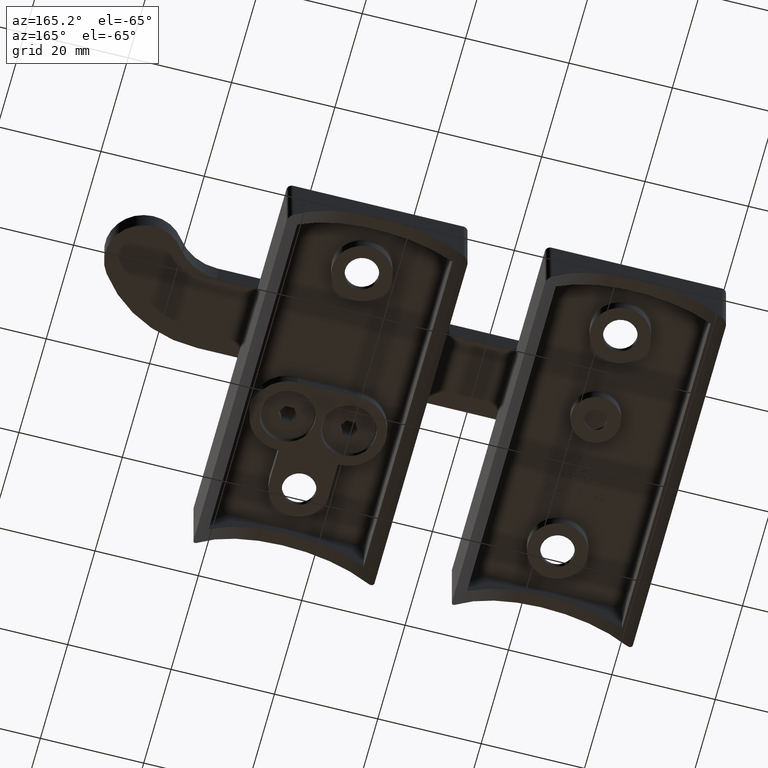
[diagram: clean part render]
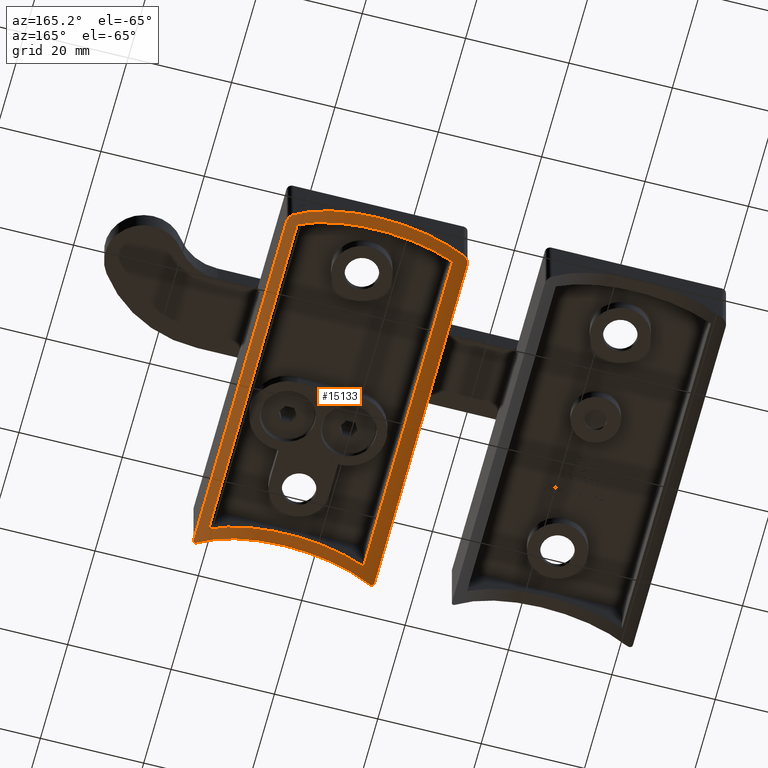
[diagram: same view with one face highlighted and labeled with its STEP entity id]
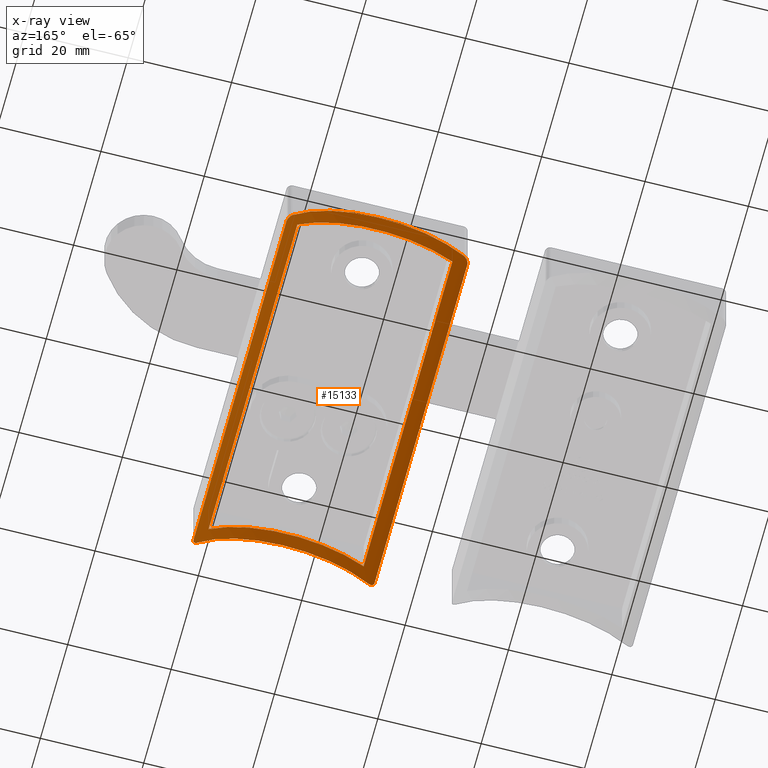
[diagram: x-ray of the same camera — body ghosted, the highlighted face saturated]
A machine part, auxiliary view. The second image highlights one B-rep face of the part: STEP entity #15133.
The next image is the same camera in x-ray: the body ghosted, the highlighted face saturated — about 0% of this face is hidden behind the body in this view.
In plain terms, the highlighted cylindrical surface (partial cylindrical patch) has radius 21.2 mm, axis along (0, 1, 0).
Its self-contained STEP definition (entity closure, byte-faithful):
#79 = CARTESIAN_POINT ( 'NONE',  ( 15.00000000000000000, -35.00000000000001421, -8.718678295957998259 ) ) ;
#118 = CARTESIAN_POINT ( 'NONE',  ( 17.50000000000001066, -34.09017644378980094, -11.73379759489253615 ) ) ;
#632 = CARTESIAN_POINT ( 'NONE',  ( 17.30907362778851422, 34.60573999613383478, -11.45864033770238244 ) ) ;
#636 = CARTESIAN_POINT ( 'NONE',  ( 17.22070841866369051, -34.70363382025578858, -11.33421729290531665 ) ) ;
#688 = CARTESIAN_POINT ( 'NONE',  ( 17.41399115309406298, 34.41231109806862065, -11.60881969456891838 ) ) ;
#689 = CARTESIAN_POINT ( 'NONE',  ( -17.48752725458700397, -34.17814461063495912, -11.71551682628386892 ) ) ;
#744 = CARTESIAN_POINT ( 'NONE',  ( -17.03192859465321973, -34.85540023232836404, -11.07545838286893769 ) ) ;
#916 = CARTESIAN_POINT ( 'NONE',  ( -17.49999999999999645, -35.00000000000001421, -11.73379759489252194 ) ) ;
#1187 = ORIENTED_EDGE ( 'NONE', *, *, #6900, .F. ) ;
#1376 = DIRECTION ( 'NONE',  ( 0.000000000000000000, 0.000000000000000000, 1.000000000000000000 ) ) ;
#1450 = DIRECTION ( 'NONE',  ( 0.000000000000000000, 1.000000000000000000, -0.000000000000000000 ) ) ;
#1591 = CARTESIAN_POINT ( 'NONE',  ( -17.30911555382637346, 34.60567274659626946, -11.45870007737560314 ) ) ;
#1739 = EDGE_LOOP ( 'NONE', ( #11026, #12719, #1785, #8586, #7864, #11562, #13607, #1187 ) ) ;
#1785 = ORIENTED_EDGE ( 'NONE', *, *, #16145, .T. ) ;
#2570 = VERTEX_POINT ( 'NONE', #5296 ) ;
#2628 = LINE ( 'NONE', #16396, #5579 ) ;
#2822 = CARTESIAN_POINT ( 'NONE',  ( -15.00000000000000178, -32.49999999999999289, -8.718678295958000035 ) ) ;
#2920 = CARTESIAN_POINT ( 'NONE',  ( -17.49999999999999645, -34.00000000000001421, -11.73379759489252194 ) ) ;
#3047 = CARTESIAN_POINT ( 'NONE',  ( -16.61180494981223177, 34.99999999999998579, -10.52731450055552465 ) ) ;
#3180 = CARTESIAN_POINT ( 'NONE',  ( -17.50000000000000000, 34.09017644378977963, -11.73379759489252372 ) ) ;
#3253 = ORIENTED_EDGE ( 'NONE', *, *, #8073, .F. ) ;
#3337 = LINE ( 'NONE', #916, #12407 ) ;
#3633 = VERTEX_POINT ( 'NONE', #2920 ) ;
#4434 = VERTEX_POINT ( 'NONE', #15267 ) ;
#4484 = DIRECTION ( 'NONE',  ( 0.000000000000000000, 1.000000000000000000, 0.000000000000000000 ) ) ;
#4522 = CARTESIAN_POINT ( 'NONE',  ( -16.50000000000000000, 34.99999999999999289, -10.38872658232880042 ) ) ;
#4530 = AXIS2_PLACEMENT_3D ( 'NONE', #15038, #13550, #12217 ) ;
#4586 = CARTESIAN_POINT ( 'NONE',  ( -17.44440010715756628, 34.33917867445475736, -11.65282813586320820 ) ) ;
#4730 = EDGE_CURVE ( 'NONE', #4434, #3633, #6131, .T. ) ;
#4763 = CARTESIAN_POINT ( 'NONE',  ( 16.50000000000000711, -35.00000000000001421, -10.38872658232880752 ) ) ;
#4821 = CARTESIAN_POINT ( 'NONE',  ( 17.44440010715757339, -34.33917867445477157, -11.65282813586321353 ) ) ;
#4881 = CARTESIAN_POINT ( 'NONE',  ( 16.50000000000000000, 34.99999999999999289, -10.38872658232880042 ) ) ;
#4892 = DIRECTION ( 'NONE',  ( -0.000000000000000000, 1.000000000000000000, -0.000000000000000000 ) ) ;
#4950 = CARTESIAN_POINT ( 'NONE',  ( 16.92946103522133328, 34.90984312734262573, -10.93822289461141928 ) ) ;
#4977 = EDGE_CURVE ( 'NONE', #5119, #13450, #12524, .T. ) ;
#5119 = VERTEX_POINT ( 'NONE', #12389 ) ;
#5127 = CARTESIAN_POINT ( 'NONE',  ( -16.72009016582341090, -34.98173907737947275, -10.66511639187242722 ) ) ;
#5134 = B_SPLINE_CURVE_WITH_KNOTS ( 'NONE', 3,
 ( #4881, #18075, #15047, #4950, #9342, #16515, #632, #688, #10831, #6523, #16699, #12281 ),
 .UNSPECIFIED., .F., .F.,
 ( 4, 2, 2, 2, 2, 4 ),
 ( 0.000000000000000000, 0.0005269720002601444540, 0.001053944000520288908, 0.001580916000780433362, 0.001844402000910505806, 0.002107888001040578684 ),
 .UNSPECIFIED. ) ;
#5188 = ORIENTED_EDGE ( 'NONE', *, *, #5565, .F. ) ;
#5197 = CARTESIAN_POINT ( 'NONE',  ( -17.50000000000000000, -34.09015482311180278, -11.73379759489252017 ) ) ;
#5296 = CARTESIAN_POINT ( 'NONE',  ( 17.50000000000000711, -34.00000000000001421, -11.73379759489253615 ) ) ;
#5565 = EDGE_CURVE ( 'NONE', #13356, #14095, #11819, .T. ) ;
#5579 = VECTOR ( 'NONE', #4892, 1000.000000000000000 ) ;
#5639 = DIRECTION ( 'NONE',  ( 0.000000000000000000, 0.000000000000000000, 1.000000000000000000 ) ) ;
#6041 = EDGE_CURVE ( 'NONE', #11640, #11611, #11770, .T. ) ;
#6106 = CARTESIAN_POINT ( 'NONE',  ( -16.72026873868559704, 34.98177445985544409, -10.66533219480767691 ) ) ;
#6131 = B_SPLINE_CURVE_WITH_KNOTS ( 'NONE', 3,
 ( #18077, #10954, #5127, #9410, #744, #13744, #18014, #8076, #7966, #689, #5197, #15288 ),
 .UNSPECIFIED., .F., .F.,
 ( 4, 2, 2, 2, 2, 4 ),
 ( 0.000000000000000000, 0.0005269720002601466224, 0.001053944000520293245, 0.001580916000780439867, 0.001844402000910509709, 0.002107888001040579551 ),
 .UNSPECIFIED. ) ;
#6279 = CARTESIAN_POINT ( 'NONE',  ( 17.48749106032254730, -34.17831192160700482, -11.71546407082080421 ) ) ;
#6347 = CARTESIAN_POINT ( 'NONE',  ( 16.93084168342353024, -34.90927160468773849, -10.94004109033135208 ) ) ;
#6523 = CARTESIAN_POINT ( 'NONE',  ( 17.48752725458701107, 34.17814461063493070, -11.71551682628387603 ) ) ;
#6595 = B_SPLINE_CURVE_WITH_KNOTS ( 'NONE', 3,
 ( #13244, #3180, #7354, #4586, #17678, #1591, #11738, #13318, #14749, #6106, #3047, #4522 ),
 .UNSPECIFIED., .F., .F.,
 ( 4, 2, 2, 2, 2, 4 ),
 ( 0.000000000000000000, 0.0002663928993981023877, 0.0005327857987962047754, 0.001065571597592412370, 0.001598357396388620181, 0.002131143195184827775 ),
 .UNSPECIFIED. ) ;
#6671 = CIRCLE ( 'NONE', #4530, 21.19999999999999929 ) ;
#6817 = VERTEX_POINT ( 'NONE', #12722 ) ;
#6900 = EDGE_CURVE ( 'NONE', #4434, #6817, #11278, .T. ) ;
#7219 = CARTESIAN_POINT ( 'NONE',  ( 0.000000000000000000, 32.49999999999998579, -23.70000000000000284 ) ) ;
#7337 = CARTESIAN_POINT ( 'NONE',  ( 17.50000000000000711, -34.00000000000001421, -11.73379759489253615 ) ) ;
#7354 = CARTESIAN_POINT ( 'NONE',  ( -17.48749106032254019, 34.17831192160697640, -11.71546407082079178 ) ) ;
#7421 = EDGE_CURVE ( 'NONE', #13134, #3633, #3337, .T. ) ;
#7848 = CARTESIAN_POINT ( 'NONE',  ( 17.03292304541700375, -34.85470123751163385, -11.07681050888410823 ) ) ;
#7864 = ORIENTED_EDGE ( 'NONE', *, *, #15369, .T. ) ;
#7966 = CARTESIAN_POINT ( 'NONE',  ( -17.44441559168094003, -34.33915302009619097, -11.65285049956932006 ) ) ;
#8073 = EDGE_CURVE ( 'NONE', #14095, #11640, #17677, .T. ) ;
#8076 = CARTESIAN_POINT ( 'NONE',  ( -17.41399115309405587, -34.41231109806864197, -11.60881969456891305 ) ) ;
#8239 = DIRECTION ( 'NONE',  ( 0.000000000000000000, -1.000000000000000000, 0.000000000000000000 ) ) ;
#8395 = VECTOR ( 'NONE', #13387, 1000.000000000000000 ) ;
#8586 = ORIENTED_EDGE ( 'NONE', *, *, #4977, .T. ) ;
#8658 = FACE_OUTER_BOUND ( 'NONE', #1739, .T. ) ;
#9062 = VERTEX_POINT ( 'NONE', #17618 ) ;
#9068 = CARTESIAN_POINT ( 'NONE',  ( -15.00000000000000178, -35.00000000000001421, -8.718678295958000035 ) ) ;
#9132 = ORIENTED_EDGE ( 'NONE', *, *, #6041, .F. ) ;
#9169 = CARTESIAN_POINT ( 'NONE',  ( 16.61180494981223887, -35.00000000000002132, -10.52731450055553175 ) ) ;
#9342 = CARTESIAN_POINT ( 'NONE',  ( 17.03192859465321973, 34.85540023232833562, -11.07545838286893947 ) ) ;
#9410 = CARTESIAN_POINT ( 'NONE',  ( -16.92946103522133328, -34.90984312734266126, -10.93822289461141928 ) ) ;
#9579 = EDGE_CURVE ( 'NONE', #2570, #9062, #2628, .T. ) ;
#9816 = DIRECTION ( 'NONE',  ( -0.000000000000000000, 1.000000000000000000, -0.000000000000000000 ) ) ;
#10530 = DIRECTION ( 'NONE',  ( 0.000000000000000000, -1.000000000000000000, 0.000000000000000000 ) ) ;
#10683 = ORIENTED_EDGE ( 'NONE', *, *, #14785, .F. ) ;
#10713 = AXIS2_PLACEMENT_3D ( 'NONE', #14223, #9816, #15810 ) ;
#10749 = DIRECTION ( 'NONE',  ( 0.000000000000000000, 0.000000000000000000, 1.000000000000000000 ) ) ;
#10761 = EDGE_CURVE ( 'NONE', #2570, #6817, #11456, .T. ) ;
#10831 = CARTESIAN_POINT ( 'NONE',  ( 17.44441559168094713, 34.33915302009615544, -11.65285049956932006 ) ) ;
#10872 = VECTOR ( 'NONE', #10530, 1000.000000000000000 ) ;
#10954 = CARTESIAN_POINT ( 'NONE',  ( -16.61191229368237643, -35.00000000000001421, -10.52744755873875349 ) ) ;
#11026 = ORIENTED_EDGE ( 'NONE', *, *, #4730, .T. ) ;
#11278 = CIRCLE ( 'NONE', #13322, 21.19999999999999929 ) ;
#11456 = B_SPLINE_CURVE_WITH_KNOTS ( 'NONE', 3,
 ( #7337, #118, #6279, #4821, #16444, #15168, #636, #7848, #6347, #17902, #9169, #4763 ),
 .UNSPECIFIED., .F., .F.,
 ( 4, 2, 2, 2, 2, 4 ),
 ( 0.000000000000000000, 0.0002663928993980977256, 0.0005327857987961954513, 0.001065571597592408900, 0.001598357396388622132, 0.002131143195184835581 ),
 .UNSPECIFIED. ) ;
#11562 = ORIENTED_EDGE ( 'NONE', *, *, #9579, .F. ) ;
#11611 = VERTEX_POINT ( 'NONE', #13876 ) ;
#11640 = VERTEX_POINT ( 'NONE', #18188 ) ;
#11738 = CARTESIAN_POINT ( 'NONE',  ( -17.22070841866367985, 34.70363382025576016, -11.33421729290531133 ) ) ;
#11770 = LINE ( 'NONE', #79, #10872 ) ;
#11819 = LINE ( 'NONE', #9068, #8395 ) ;
#12217 = DIRECTION ( 'NONE',  ( 0.000000000000000000, 0.000000000000000000, -1.000000000000000000 ) ) ;
#12281 = CARTESIAN_POINT ( 'NONE',  ( 17.50000000000000000, 33.99999999999998579, -11.73379759489252550 ) ) ;
#12389 = CARTESIAN_POINT ( 'NONE',  ( -16.50000000000000000, 34.99999999999999289, -10.38872658232880042 ) ) ;
#12407 = VECTOR ( 'NONE', #8239, 1000.000000000000000 ) ;
#12524 = CIRCLE ( 'NONE', #14442, 21.19999999999999929 ) ;
#12600 = AXIS2_PLACEMENT_3D ( 'NONE', #7219, #1450, #5639 ) ;
#12719 = ORIENTED_EDGE ( 'NONE', *, *, #7421, .F. ) ;
#12722 = CARTESIAN_POINT ( 'NONE',  ( 16.50000000000000711, -35.00000000000001421, -10.38872658232880752 ) ) ;
#13134 = VERTEX_POINT ( 'NONE', #16683 ) ;
#13244 = CARTESIAN_POINT ( 'NONE',  ( -17.50000000000000000, 33.99999999999998579, -11.73379759489252550 ) ) ;
#13318 = CARTESIAN_POINT ( 'NONE',  ( -17.03292304541700020, 34.85470123751161964, -11.07681050888410290 ) ) ;
#13322 = AXIS2_PLACEMENT_3D ( 'NONE', #18812, #4484, #1376 ) ;
#13356 = VERTEX_POINT ( 'NONE', #2822 ) ;
#13387 = DIRECTION ( 'NONE',  ( -0.000000000000000000, 1.000000000000000000, -0.000000000000000000 ) ) ;
#13450 = VERTEX_POINT ( 'NONE', #16398 ) ;
#13550 = DIRECTION ( 'NONE',  ( 0.000000000000000000, -1.000000000000000000, 0.000000000000000000 ) ) ;
#13607 = ORIENTED_EDGE ( 'NONE', *, *, #10761, .T. ) ;
#13668 = DIRECTION ( 'NONE',  ( 0.000000000000000000, 1.000000000000000000, 0.000000000000000000 ) ) ;
#13698 = EDGE_LOOP ( 'NONE', ( #10683, #9132, #3253, #5188 ) ) ;
#13744 = CARTESIAN_POINT ( 'NONE',  ( -17.22069228036732369, -34.70374727302925777, -11.33418421288197386 ) ) ;
#13876 = CARTESIAN_POINT ( 'NONE',  ( 15.00000000000000000, -32.49999999999999289, -8.718678295957998259 ) ) ;
#14095 = VERTEX_POINT ( 'NONE', #15903 ) ;
#14223 = CARTESIAN_POINT ( 'NONE',  ( 0.000000000000000000, -35.00000000000001421, -23.70000000000000284 ) ) ;
#14442 = AXIS2_PLACEMENT_3D ( 'NONE', #15033, #13668, #10749 ) ;
#14749 = CARTESIAN_POINT ( 'NONE',  ( -16.93084168342352669, 34.90927160468773138, -10.94004109033134675 ) ) ;
#14785 = EDGE_CURVE ( 'NONE', #11611, #13356, #6671, .T. ) ;
#15033 = CARTESIAN_POINT ( 'NONE',  ( 0.000000000000000000, 34.99999999999999289, -23.70000000000000284 ) ) ;
#15038 = CARTESIAN_POINT ( 'NONE',  ( 0.000000000000000000, -32.49999999999999289, -23.70000000000000284 ) ) ;
#15047 = CARTESIAN_POINT ( 'NONE',  ( 16.72009016582341800, 34.98173907737944432, -10.66511639187243077 ) ) ;
#15133 = ADVANCED_FACE ( 'NONE', ( #8658, #15296 ), #18230, .F. ) ;
#15168 = CARTESIAN_POINT ( 'NONE',  ( 17.30911555382638412, -34.60567274659629078, -11.45870007737560847 ) ) ;
#15267 = CARTESIAN_POINT ( 'NONE',  ( -16.49999999999999645, -35.00000000000001421, -10.38872658232879509 ) ) ;
#15288 = CARTESIAN_POINT ( 'NONE',  ( -17.49999999999999645, -34.00000000000001421, -11.73379759489252194 ) ) ;
#15296 = FACE_BOUND ( 'NONE', #13698, .T. ) ;
#15369 = EDGE_CURVE ( 'NONE', #13450, #9062, #5134, .T. ) ;
#15810 = DIRECTION ( 'NONE',  ( 0.000000000000000000, 0.000000000000000000, 1.000000000000000000 ) ) ;
#15903 = CARTESIAN_POINT ( 'NONE',  ( -15.00000000000000178, 32.49999999999998579, -8.718678295958000035 ) ) ;
#16145 = EDGE_CURVE ( 'NONE', #13134, #5119, #6595, .T. ) ;
#16396 = CARTESIAN_POINT ( 'NONE',  ( 17.50000000000000711, -35.00000000000001421, -11.73379759489253615 ) ) ;
#16398 = CARTESIAN_POINT ( 'NONE',  ( 16.50000000000000000, 34.99999999999999289, -10.38872658232880042 ) ) ;
#16444 = CARTESIAN_POINT ( 'NONE',  ( 17.41399355130321780, -34.41230165174234656, -11.60882326413141818 ) ) ;
#16515 = CARTESIAN_POINT ( 'NONE',  ( 17.22069228036732014, 34.70374727302922224, -11.33418421288197919 ) ) ;
#16683 = CARTESIAN_POINT ( 'NONE',  ( -17.50000000000000000, 33.99999999999998579, -11.73379759489252550 ) ) ;
#16699 = CARTESIAN_POINT ( 'NONE',  ( 17.50000000000000711, 34.09015482311177436, -11.73379759489253438 ) ) ;
#17618 = CARTESIAN_POINT ( 'NONE',  ( 17.50000000000000000, 33.99999999999998579, -11.73379759489252550 ) ) ;
#17677 = CIRCLE ( 'NONE', #12600, 21.19999999999999929 ) ;
#17678 = CARTESIAN_POINT ( 'NONE',  ( -17.41399355130321425, 34.41230165174233235, -11.60882326413141108 ) ) ;
#17902 = CARTESIAN_POINT ( 'NONE',  ( 16.72026873868559704, -34.98177445985547251, -10.66533219480768757 ) ) ;
#18014 = CARTESIAN_POINT ( 'NONE',  ( -17.30907362778851422, -34.60573999613386320, -11.45864033770238244 ) ) ;
#18075 = CARTESIAN_POINT ( 'NONE',  ( 16.61191229368238709, 34.99999999999999289, -10.52744755873875704 ) ) ;
#18077 = CARTESIAN_POINT ( 'NONE',  ( -16.49999999999999645, -35.00000000000001421, -10.38872658232879509 ) ) ;
#18188 = CARTESIAN_POINT ( 'NONE',  ( 15.00000000000000000, 32.49999999999998579, -8.718678295957998259 ) ) ;
#18230 = CYLINDRICAL_SURFACE ( 'NONE', #10713, 21.19999999999999929 ) ;
#18812 = CARTESIAN_POINT ( 'NONE',  ( 0.000000000000000000, -35.00000000000001421, -23.70000000000000284 ) ) ;